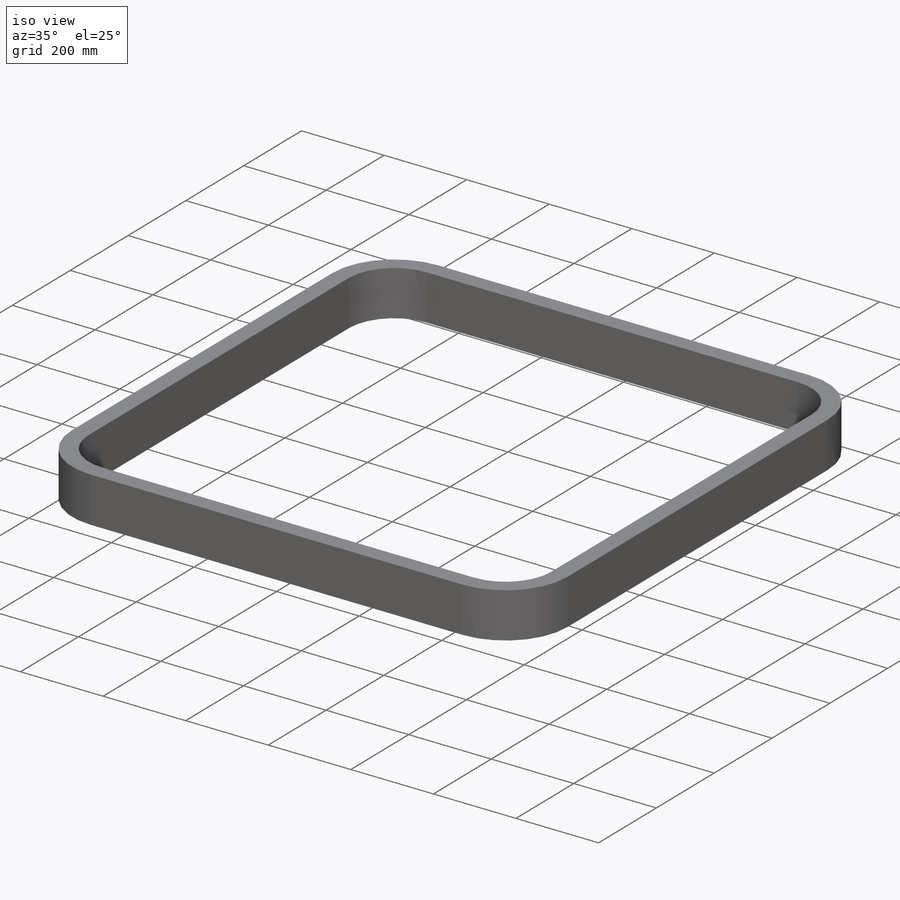
[diagram: iso view]
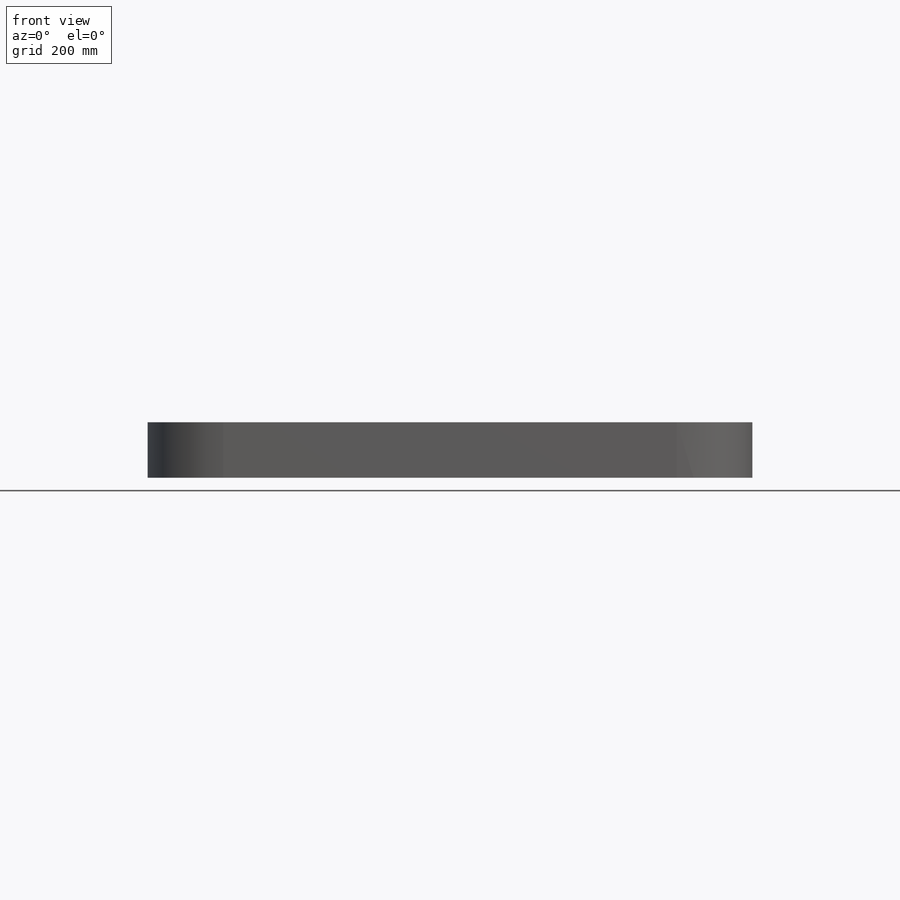
[diagram: front view]
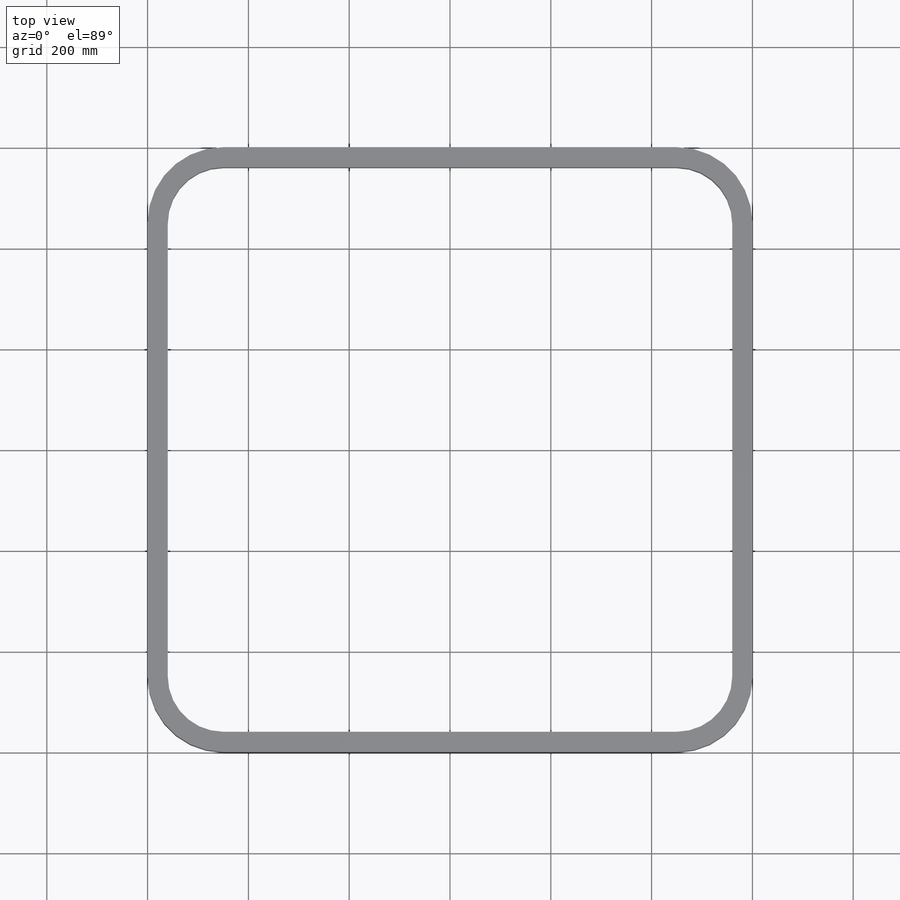
[diagram: top view]
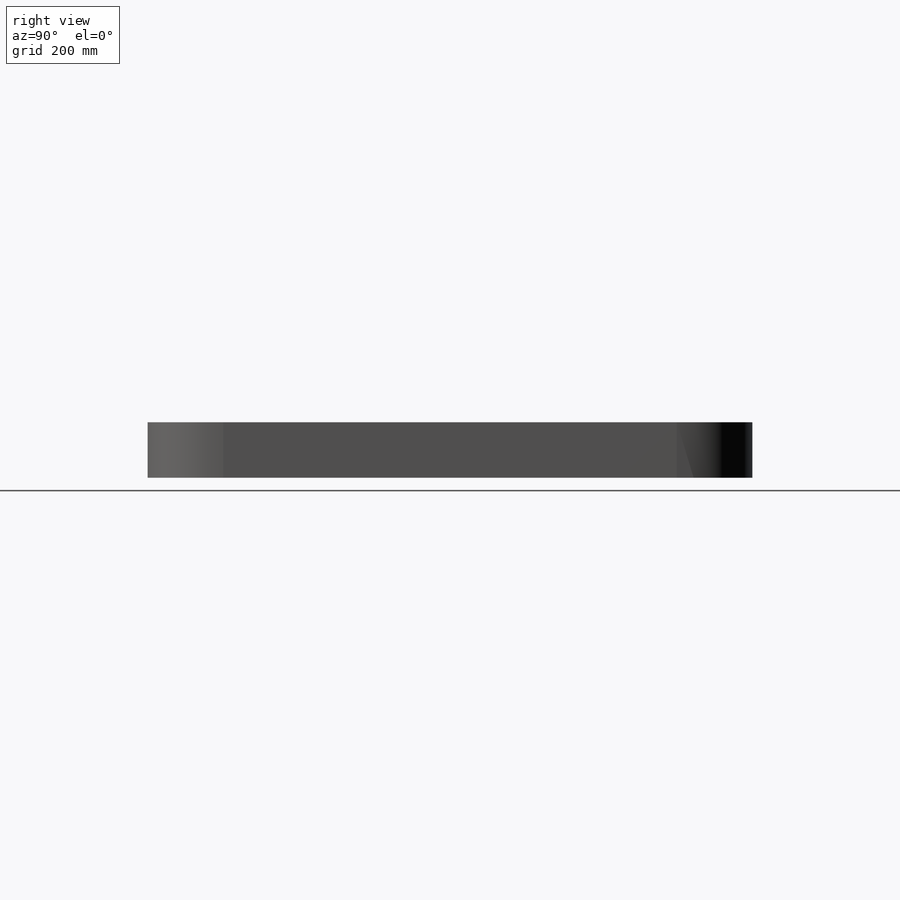
[diagram: right view]
SOLIDWORKS PART (.sldprt)
format: sldprt  version: not decoded by parser v0  size: 209,408 bytes
history: native  units: mm
features: sketch x6, cut_extrude x3, material x1, extrude x1 (+11 scaffold rows collapsed)
feature tree (22):
  scaffold x11  (default folders/planes/origin — collapsed)
  material  "Material <not specified>"
  sketch  "Sketch1"  dims[D3=150.0mm D1=1200.0mm D2=1200.0mm]
  extrude  "Boss-Extrude1"  Depth=150mm
  sketch  "Sketch2"  dims[D1=40.0mm]
  cut_extrude  "Cut-Extrude1"  Depth=110mm
  sketch  "Sketch3"
  cut_extrude  "Cut-Extrude2"  Depth=110mm
  sketch  "Sketch4"  dims[c1.D1=180.0mm c1.D2=180.0mm c1.D3=180.0mm c1.D4=180.0mm c1.D5=180.0mm c1.D6=180.0mm c2.D2=150.0mm c2.D3=150.0mm]
  sketch  "Sketch5"  dims[D1=945.0mm]
  sketch  "Sketch7"  dims[D1=0.0mm]
  cut_extrude  "Cut-Extrude4"  [1 undecoded]
decode coverage: 8 of 10 modeling features carry decoded parameters
note: 1 parameter value undecoded
note: suppression state not decoded; provenance and decode notes live in map.json
